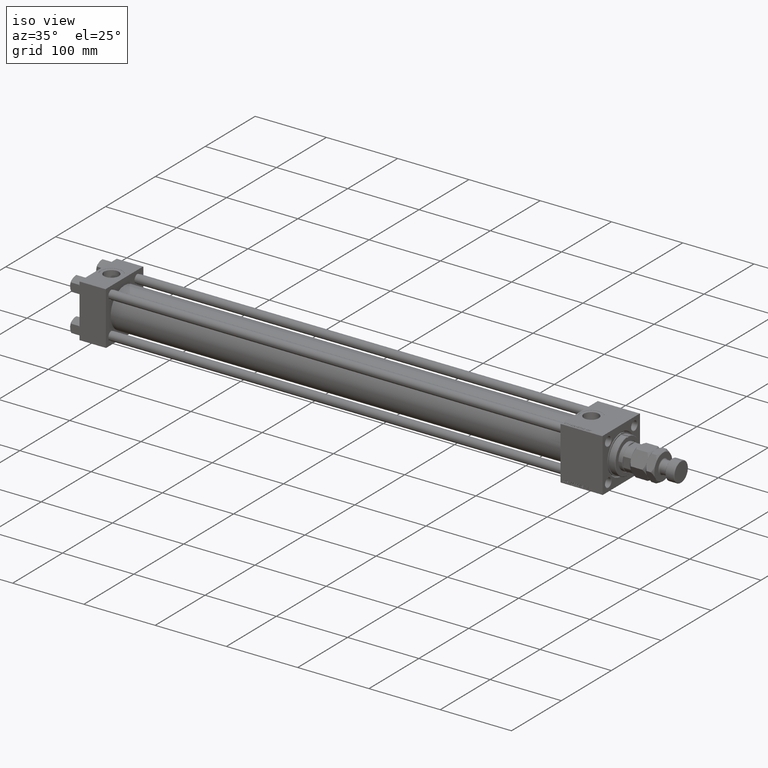
[diagram: clean part render]
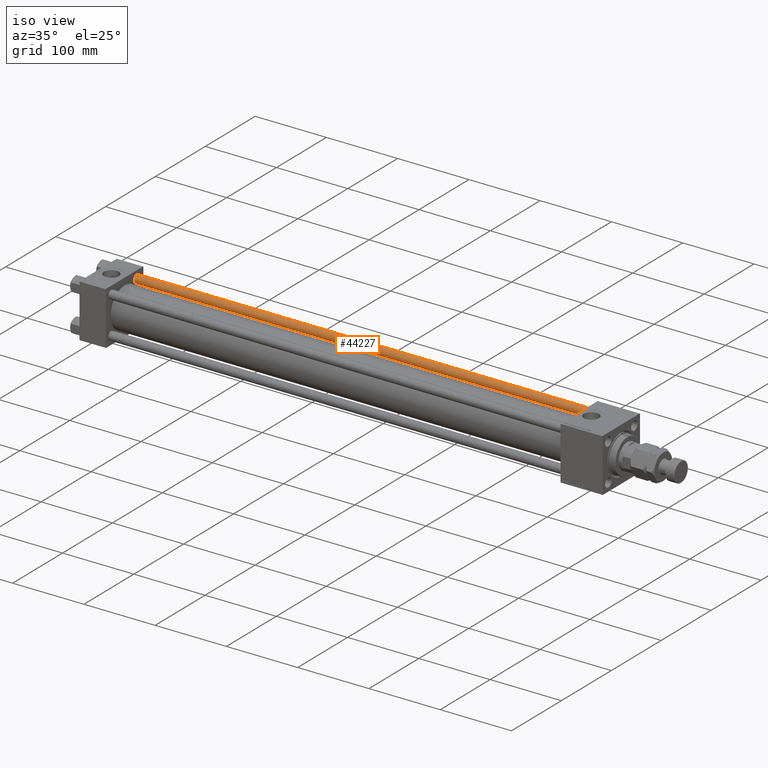
[diagram: same view with one face highlighted and labeled with its STEP entity id]
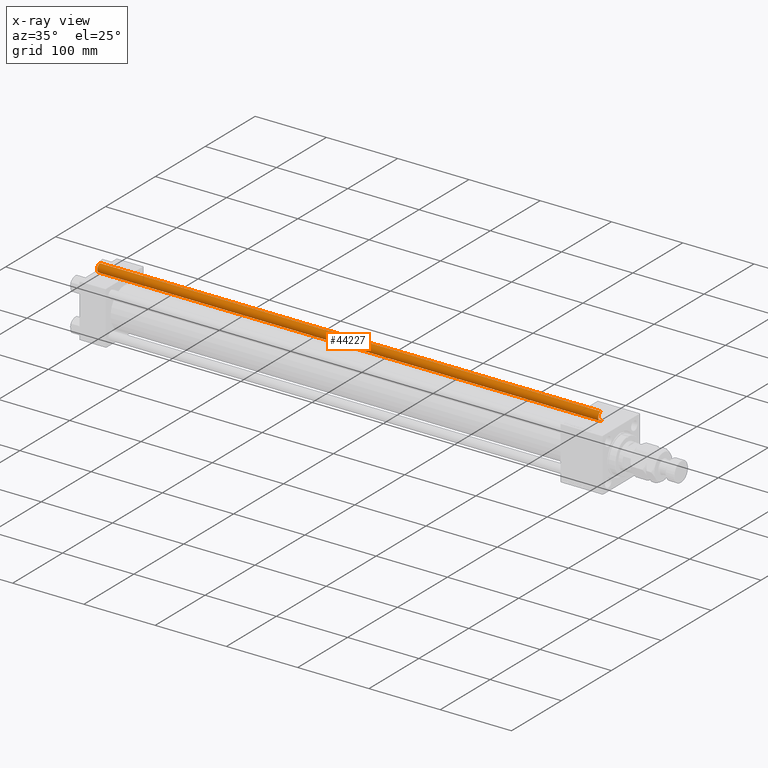
[diagram: x-ray of the same camera — body ghosted, the highlighted face saturated]
A machine part, iso view. The second image highlights one B-rep face of the part: STEP entity #44227.
The next image is the same camera in x-ray: the body ghosted, the highlighted face saturated — about 0% of this face is hidden behind the body in this view.
In plain terms, the highlighted cylindrical surface (edge-blend (fillet) strip) has radius 6 mm, axis along (-1, 0, 0).
Its self-contained STEP definition (entity closure, byte-faithful):
#5690 = VERTEX_POINT ( 'NONE', #16688 ) ;
#6968 = DIRECTION ( 'NONE',  ( -0.000000000000000000, -0.000000000000000000, 1.000000000000000000 ) ) ;
#9003 = VECTOR ( 'NONE', #17805, 1000.000000000000000 ) ;
#10936 = LINE ( 'NONE', #43119, #9003 ) ;
#12044 = CARTESIAN_POINT ( 'NONE',  ( -6.000000000000000888, 0.000000000000000000, 703.5000000000000000 ) ) ;
#13727 = AXIS2_PLACEMENT_3D ( 'NONE', #46554, #6968, #18586 ) ;
#14998 = ORIENTED_EDGE ( 'NONE', *, *, #23281, .T. ) ;
#16497 = EDGE_CURVE ( 'NONE', #5690, #40656, #10936, .T. ) ;
#16556 = AXIS2_PLACEMENT_3D ( 'NONE', #38262, #46169, #17414 ) ;
#16688 = CARTESIAN_POINT ( 'NONE',  ( 6.000000000000000888, 7.347880794884120722E-16, 703.5000000000000000 ) ) ;
#17414 = DIRECTION ( 'NONE',  ( -1.000000000000000000, 0.000000000000000000, 0.000000000000000000 ) ) ;
#17805 = DIRECTION ( 'NONE',  ( -0.000000000000000000, -0.000000000000000000, -1.000000000000000000 ) ) ;
#17848 = LINE ( 'NONE', #45808, #42950 ) ;
#18586 = DIRECTION ( 'NONE',  ( 1.000000000000000000, 0.000000000000000000, 0.000000000000000000 ) ) ;
#20439 = CIRCLE ( 'NONE', #13727, 6.000000000000000888 ) ;
#21903 = EDGE_CURVE ( 'NONE', #5690, #40392, #51286, .T. ) ;
#23281 = EDGE_CURVE ( 'NONE', #40392, #34506, #17848, .T. ) ;
#24361 = CARTESIAN_POINT ( 'NONE',  ( 6.000000000000000888, 7.347880794884120722E-16, 0.4999999999998339106 ) ) ;
#27919 = EDGE_LOOP ( 'NONE', ( #45171, #47991, #14998, #51648 ) ) ;
#30259 = AXIS2_PLACEMENT_3D ( 'NONE', #50659, #38797, #30365 ) ;
#30365 = DIRECTION ( 'NONE',  ( 1.000000000000000000, 0.000000000000000000, 0.000000000000000000 ) ) ;
#33935 = DIRECTION ( 'NONE',  ( -0.000000000000000000, -0.000000000000000000, -1.000000000000000000 ) ) ;
#34501 = EDGE_CURVE ( 'NONE', #34506, #40656, #20439, .T. ) ;
#34506 = VERTEX_POINT ( 'NONE', #42584 ) ;
#38262 = CARTESIAN_POINT ( 'NONE',  ( 0.000000000000000000, 0.000000000000000000, 704.0000000000000000 ) ) ;
#38797 = DIRECTION ( 'NONE',  ( 0.000000000000000000, 0.000000000000000000, -1.000000000000000000 ) ) ;
#40392 = VERTEX_POINT ( 'NONE', #12044 ) ;
#40656 = VERTEX_POINT ( 'NONE', #24361 ) ;
#42584 = CARTESIAN_POINT ( 'NONE',  ( -6.000000000000000888, 0.000000000000000000, 0.4999999999998339106 ) ) ;
#42950 = VECTOR ( 'NONE', #33935, 1000.000000000000000 ) ;
#43119 = CARTESIAN_POINT ( 'NONE',  ( 6.000000000000000888, 7.347880794884120722E-16, 704.0000000000000000 ) ) ;
#44227 = ADVANCED_FACE ( 'NONE', ( #44662 ), #50119, .T. ) ;
#44662 = FACE_OUTER_BOUND ( 'NONE', #27919, .T. ) ;
#45171 = ORIENTED_EDGE ( 'NONE', *, *, #16497, .F. ) ;
#45808 = CARTESIAN_POINT ( 'NONE',  ( -6.000000000000000888, 0.000000000000000000, 704.0000000000000000 ) ) ;
#46169 = DIRECTION ( 'NONE',  ( -0.000000000000000000, -0.000000000000000000, -1.000000000000000000 ) ) ;
#46554 = CARTESIAN_POINT ( 'NONE',  ( 0.000000000000000000, 0.000000000000000000, 0.4999999999998339106 ) ) ;
#47991 = ORIENTED_EDGE ( 'NONE', *, *, #21903, .T. ) ;
#50119 = CYLINDRICAL_SURFACE ( 'NONE', #16556, 6.000000000000000888 ) ;
#50659 = CARTESIAN_POINT ( 'NONE',  ( 0.000000000000000000, 0.000000000000000000, 703.5000000000000000 ) ) ;
#51286 = CIRCLE ( 'NONE', #30259, 6.000000000000000888 ) ;
#51648 = ORIENTED_EDGE ( 'NONE', *, *, #34501, .T. ) ;